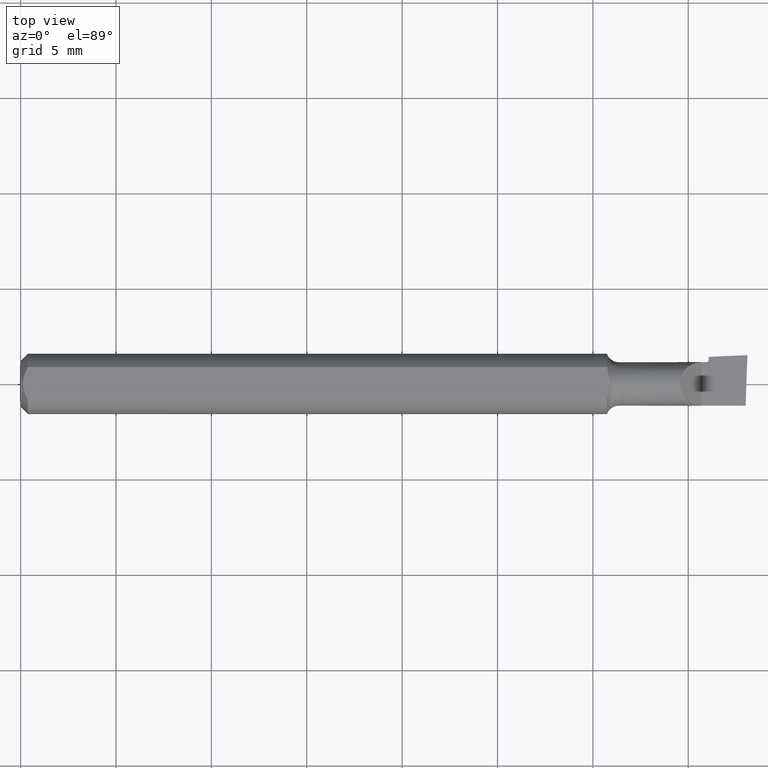
[diagram: clean part render]
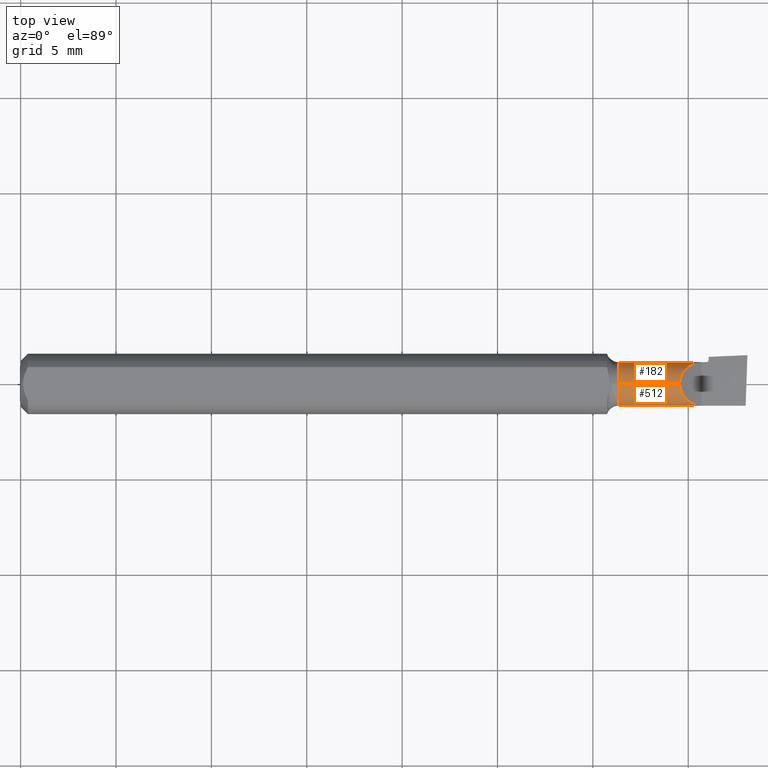
[diagram: same view with one multi-face feature highlighted, each face labeled with its STEP entity id]
A machine part, top view. The highlighted faces form ONE feature: a constant-radius fillet chain: 2 tangent blend faces with common blend radius 1.143 mm. The faces share edges in the B-rep.
Their STEP definitions:
[1] entity #182 (Cylinder):
#10 = EDGE_CURVE ( 'NONE', #230, #332, #533, .T. ) ;
#11 = CARTESIAN_POINT ( 'NONE',  ( 0.000000000000000000, 0.000000000000000000, 0.04499999999999999833 ) ) ;
#12 = LINE ( 'NONE', #582, #58 ) ;
#26 = VERTEX_POINT ( 'NONE', #201 ) ;
#31 = DIRECTION ( 'NONE',  ( -1.000000000000000000, -0.000000000000000000, -0.000000000000000000 ) ) ;
#35 = DIRECTION ( 'NONE',  ( 1.000000000000000000, 0.000000000000000000, 0.000000000000000000 ) ) ;
#42 = EDGE_CURVE ( 'NONE', #26, #192, #12, .T. ) ;
#47 = CARTESIAN_POINT ( 'NONE',  ( 1.378802680697162275, 0.04479487577709501817, 0.02654731930283728628 ) ) ;
#58 = VECTOR ( 'NONE', #115, 39.37007874015748143 ) ;
#67 = CARTESIAN_POINT ( 'NONE',  ( 1.405000000000000249, 0.000000000000000000, 0.000000000000000000 ) ) ;
#81 = CARTESIAN_POINT ( 'NONE',  ( 1.405000000000000249, 0.04499999999999999833, -1.868634782302818344E-17 ) ) ;
#115 = DIRECTION ( 'NONE',  ( -1.000000000000000000, -0.000000000000000000, -0.000000000000000000 ) ) ;
#129 = EDGE_CURVE ( 'NONE', #230, #168, #238, .T. ) ;
#133 = AXIS2_PLACEMENT_3D ( 'NONE', #199, #392, #581 ) ;
#143 = AXIS2_PLACEMENT_3D ( 'NONE', #304, #552, #409 ) ;
#159 = DIRECTION ( 'NONE',  ( 0.000000000000000000, 0.000000000000000000, 1.000000000000000000 ) ) ;
#168 = VERTEX_POINT ( 'NONE', #81 ) ;
#170 = ORIENTED_EDGE ( 'NONE', *, *, #224, .T. ) ;
#182 = ADVANCED_FACE ( 'NONE', ( #222 ), #557, .T. ) ;
#189 = ORIENTED_EDGE ( 'NONE', *, *, #42, .T. ) ;
#192 = VERTEX_POINT ( 'NONE', #600 ) ;
#195 = CARTESIAN_POINT ( 'NONE',  ( 0.000000000000000000, 0.04499999999999999833, -1.868634782302818344E-17 ) ) ;
#199 = CARTESIAN_POINT ( 'NONE',  ( 1.233999999999999986, 0.000000000000000000, 0.000000000000000000 ) ) ;
#201 = CARTESIAN_POINT ( 'NONE',  ( 1.415000000000000036, 1.824590875493064959E-16, -0.04499999999999993588 ) ) ;
#207 = ORIENTED_EDGE ( 'NONE', *, *, #129, .T. ) ;
#209 = AXIS2_PLACEMENT_3D ( 'NONE', #360, #31, #366 ) ;
#222 = FACE_OUTER_BOUND ( 'NONE', #321, .T. ) ;
#224 = EDGE_CURVE ( 'NONE', #556, #26, #328, .T. ) ;
#230 = VERTEX_POINT ( 'NONE', #451 ) ;
#238 = CIRCLE ( 'NONE', #361, 0.04499999999999999833 ) ;
#244 = DIRECTION ( 'NONE',  ( -1.000000000000000000, -0.000000000000000000, -0.000000000000000000 ) ) ;
#274 = VERTEX_POINT ( 'NONE', #353 ) ;
#297 = CARTESIAN_POINT ( 'NONE',  ( 1.415000000000000036, 0.04499999999999999833, -1.868634782302818344E-17 ) ) ;
#304 = CARTESIAN_POINT ( 'NONE',  ( 1.415000000000000036, 0.000000000000000000, 0.000000000000000000 ) ) ;
#318 = VECTOR ( 'NONE', #35, 39.37007874015748143 ) ;
#319 = VECTOR ( 'NONE', #244, 39.37007874015748143 ) ;
#321 = EDGE_LOOP ( 'NONE', ( #170, #189, #385, #473, #354, #207, #511 ) ) ;
#327 = CARTESIAN_POINT ( 'NONE',  ( 1.405000000000000249, 0.04499863886830356152, 0.0003499999999995775913 ) ) ;
#328 = CIRCLE ( 'NONE', #143, 0.04499999999999999833 ) ;
#332 = VERTEX_POINT ( 'NONE', #381 ) ;
#353 = CARTESIAN_POINT ( 'NONE',  ( 1.233999999999999986, 0.000000000000000000, 0.04499999999999999140 ) ) ;
#354 = ORIENTED_EDGE ( 'NONE', *, *, #10, .F. ) ;
#360 = CARTESIAN_POINT ( 'NONE',  ( 0.000000000000000000, 0.000000000000000000, 0.000000000000000000 ) ) ;
#361 = AXIS2_PLACEMENT_3D ( 'NONE', #67, #485, #159 ) ;
#365 = EDGE_CURVE ( 'NONE', #168, #556, #610, .T. ) ;
#366 = DIRECTION ( 'NONE',  ( 0.000000000000000000, 0.000000000000000000, 1.000000000000000000 ) ) ;
#381 = CARTESIAN_POINT ( 'NONE',  ( 1.360350000000000170, 0.000000000000000000, 0.04499999999999999833 ) ) ;
#385 = ORIENTED_EDGE ( 'NONE', *, *, #612, .F. ) ;
#390 = CARTESIAN_POINT ( 'NONE',  ( 1.360350000000000170, 0.000000000000000000, 0.04499999999999999833 ) ) ;
#392 = DIRECTION ( 'NONE',  ( -1.000000000000000000, -0.000000000000000000, -0.000000000000000000 ) ) ;
#409 = DIRECTION ( 'NONE',  ( 0.000000000000000000, 0.000000000000000000, 1.000000000000000000 ) ) ;
#451 = CARTESIAN_POINT ( 'NONE',  ( 1.405000000000000249, 0.04499863886830356152, 0.0003499999999995775913 ) ) ;
#473 = ORIENTED_EDGE ( 'NONE', *, *, #584, .F. ) ;
#485 = DIRECTION ( 'NONE',  ( -1.000000000000000000, -0.000000000000000000, -0.000000000000000000 ) ) ;
#511 = ORIENTED_EDGE ( 'NONE', *, *, #365, .T. ) ;
#533 =( BOUNDED_CURVE ( )  B_SPLINE_CURVE ( 3, ( #327, #47, #542, #390 ),
 .UNSPECIFIED., .F., .T. ) 
 B_SPLINE_CURVE_WITH_KNOTS ( ( 4, 4 ),
 ( 4.720166836582517789, 6.283185307179586232 ),
 .UNSPECIFIED. ) 
 CURVE ( )  GEOMETRIC_REPRESENTATION_ITEM ( )  RATIONAL_B_SPLINE_CURVE ( ( 1.000000000000000000, 0.8065675430899280629, 0.8065675430899280629, 1.000000000000000000 ) ) 
 REPRESENTATION_ITEM ( '' )  );
#542 = CARTESIAN_POINT ( 'NONE',  ( 1.360350000000000170, 0.02619811172684342881, 0.04499999999999999833 ) ) ;
#552 = DIRECTION ( 'NONE',  ( -1.000000000000000000, -0.000000000000000000, -0.000000000000000000 ) ) ;
#556 = VERTEX_POINT ( 'NONE', #297 ) ;
#557 = CYLINDRICAL_SURFACE ( 'NONE', #209, 0.04499999999999999833 ) ;
#578 = LINE ( 'NONE', #11, #319 ) ;
#581 = DIRECTION ( 'NONE',  ( 0.000000000000000000, 0.000000000000000000, 1.000000000000000000 ) ) ;
#582 = CARTESIAN_POINT ( 'NONE',  ( 0.000000000000000000, 5.510910596163089556E-18, -0.04499999999999999833 ) ) ;
#584 = EDGE_CURVE ( 'NONE', #332, #274, #578, .T. ) ;
#600 = CARTESIAN_POINT ( 'NONE',  ( 1.233999999999999986, 6.573291694434120121E-18, -0.04499999999999999140 ) ) ;
#610 = LINE ( 'NONE', #195, #318 ) ;
#612 = EDGE_CURVE ( 'NONE', #274, #192, #618, .T. ) ;
#618 = CIRCLE ( 'NONE', #133, 0.04499999999999999140 ) ;
[2] entity #512 (Cylinder):
#5 = CARTESIAN_POINT ( 'NONE',  ( 1.405000000000000249, -0.04499999999999999833, -1.868634782302818344E-17 ) ) ;
#11 = CARTESIAN_POINT ( 'NONE',  ( 0.000000000000000000, 0.000000000000000000, 0.04499999999999999833 ) ) ;
#12 = LINE ( 'NONE', #582, #58 ) ;
#26 = VERTEX_POINT ( 'NONE', #201 ) ;
#32 = ORIENTED_EDGE ( 'NONE', *, *, #161, .T. ) ;
#42 = EDGE_CURVE ( 'NONE', #26, #192, #12, .T. ) ;
#44 = ORIENTED_EDGE ( 'NONE', *, *, #300, .T. ) ;
#57 = CARTESIAN_POINT ( 'NONE',  ( 1.360350000000000170, -0.02619811172684342881, 0.04499999999999999833 ) ) ;
#58 = VECTOR ( 'NONE', #115, 39.37007874015748143 ) ;
#59 = VERTEX_POINT ( 'NONE', #576 ) ;
#77 = CARTESIAN_POINT ( 'NONE',  ( 1.435446859173552969, -0.04340526729089896202, -0.4961638572300726135 ) ) ;
#78 = ORIENTED_EDGE ( 'NONE', *, *, #619, .T. ) ;
#96 = ORIENTED_EDGE ( 'NONE', *, *, #459, .F. ) ;
#98 = CARTESIAN_POINT ( 'NONE',  ( 1.491469573703458229, -0.02629326065177165980, -0.04500000000000010936 ) ) ;
#100 = CYLINDRICAL_SURFACE ( 'NONE', #580, 0.04499999999999999833 ) ;
#115 = DIRECTION ( 'NONE',  ( -1.000000000000000000, -0.000000000000000000, -0.000000000000000000 ) ) ;
#130 = DIRECTION ( 'NONE',  ( 1.000000000000000000, 1.790984261580614452E-17, -6.284155303791548068E-17 ) ) ;
#134 = DIRECTION ( 'NONE',  ( 0.000000000000000000, 0.000000000000000000, 1.000000000000000000 ) ) ;
#136 = EDGE_CURVE ( 'NONE', #332, #240, #359, .T. ) ;
#137 = DIRECTION ( 'NONE',  ( 0.000000000000000000, 0.000000000000000000, 1.000000000000000000 ) ) ;
#140 = ORIENTED_EDGE ( 'NONE', *, *, #584, .T. ) ;
#147 = ORIENTED_EDGE ( 'NONE', *, *, #346, .F. ) ;
#150 = CARTESIAN_POINT ( 'NONE',  ( 1.493102199893894255, -0.04491525817069149523, -0.02643775972283102238 ) ) ;
#155 = LINE ( 'NONE', #398, #287 ) ;
#161 = EDGE_CURVE ( 'NONE', #59, #315, #203, .T. ) ;
#163 = VECTOR ( 'NONE', #547, 39.37007874015748854 ) ;
#167 = LINE ( 'NONE', #357, #383 ) ;
#192 = VERTEX_POINT ( 'NONE', #600 ) ;
#196 = CARTESIAN_POINT ( 'NONE',  ( 1.496329483393618709, -0.04499976756329679417, -0.0001446348825885092598 ) ) ;
#201 = CARTESIAN_POINT ( 'NONE',  ( 1.415000000000000036, 1.824590875493064959E-16, -0.04499999999999993588 ) ) ;
#203 = LINE ( 'NONE', #77, #163 ) ;
#240 = VERTEX_POINT ( 'NONE', #455 ) ;
#244 = DIRECTION ( 'NONE',  ( -1.000000000000000000, -0.000000000000000000, -0.000000000000000000 ) ) ;
#247 = DIRECTION ( 'NONE',  ( -1.000000000000000000, -0.000000000000000000, -0.000000000000000000 ) ) ;
#253 = ORIENTED_EDGE ( 'NONE', *, *, #136, .F. ) ;
#272 = VERTEX_POINT ( 'NONE', #591 ) ;
#274 = VERTEX_POINT ( 'NONE', #353 ) ;
#284 = EDGE_CURVE ( 'NONE', #26, #272, #167, .T. ) ;
#286 = DIRECTION ( 'NONE',  ( 0.000000000000000000, 0.000000000000000000, 1.000000000000000000 ) ) ;
#287 = VECTOR ( 'NONE', #586, 39.37007874015748143 ) ;
#291 = CARTESIAN_POINT ( 'NONE',  ( 1.360350000000000170, 0.000000000000000000, 0.04499999999999999833 ) ) ;
#300 = EDGE_CURVE ( 'NONE', #609, #240, #549, .T. ) ;
#315 = VERTEX_POINT ( 'NONE', #567 ) ;
#319 = VECTOR ( 'NONE', #244, 39.37007874015748143 ) ;
#320 = DIRECTION ( 'NONE',  ( -1.000000000000000000, -0.000000000000000000, -0.000000000000000000 ) ) ;
#332 = VERTEX_POINT ( 'NONE', #381 ) ;
#344 = CARTESIAN_POINT ( 'NONE',  ( 1.378802680697162275, -0.04479487577709500429, 0.02654731930283730015 ) ) ;
#346 = EDGE_CURVE ( 'NONE', #192, #274, #488, .T. ) ;
#347 = EDGE_LOOP ( 'NONE', ( #607, #614, #96, #32, #78, #44, #253, #140, #147 ) ) ;
#353 = CARTESIAN_POINT ( 'NONE',  ( 1.233999999999999986, 0.000000000000000000, 0.04499999999999999140 ) ) ;
#357 = CARTESIAN_POINT ( 'NONE',  ( 1.420000000000000151, 1.825486367623855226E-16, -0.04499999999999993588 ) ) ;
#359 =( BOUNDED_CURVE ( )  B_SPLINE_CURVE ( 3, ( #291, #57, #344, #443 ),
 .UNSPECIFIED., .F., .T. ) 
 B_SPLINE_CURVE_WITH_KNOTS ( ( 4, 4 ),
 ( 0.000000000000000000, 1.563018470597068443 ),
 .UNSPECIFIED. ) 
 CURVE ( )  GEOMETRIC_REPRESENTATION_ITEM ( )  RATIONAL_B_SPLINE_CURVE ( ( 1.000000000000000000, 0.8065675430899280629, 0.8065675430899280629, 1.000000000000000000 ) ) 
 REPRESENTATION_ITEM ( '' )  );
#381 = CARTESIAN_POINT ( 'NONE',  ( 1.360350000000000170, 0.000000000000000000, 0.04499999999999999833 ) ) ;
#383 = VECTOR ( 'NONE', #130, 39.37007874015748143 ) ;
#389 = CARTESIAN_POINT ( 'NONE',  ( 0.000000000000000000, 0.000000000000000000, 0.000000000000000000 ) ) ;
#396 = FACE_OUTER_BOUND ( 'NONE', #347, .T. ) ;
#398 = CARTESIAN_POINT ( 'NONE',  ( 0.000000000000000000, -0.04499999999999999833, -1.868634782302818344E-17 ) ) ;
#443 = CARTESIAN_POINT ( 'NONE',  ( 1.405000000000000249, -0.04499863886830356152, 0.0003499999999995775913 ) ) ;
#449 = AXIS2_PLACEMENT_3D ( 'NONE', #464, #563, #134 ) ;
#455 = CARTESIAN_POINT ( 'NONE',  ( 1.405000000000000249, -0.04499863886830356152, 0.0003499999999995775913 ) ) ;
#459 = EDGE_CURVE ( 'NONE', #59, #272, #467, .T. ) ;
#464 = CARTESIAN_POINT ( 'NONE',  ( 1.233999999999999986, 0.000000000000000000, 0.000000000000000000 ) ) ;
#467 =( BOUNDED_CURVE ( )  B_SPLINE_CURVE ( 3, ( #196, #150, #98, #484 ),
 .UNSPECIFIED., .F., .T. ) 
 B_SPLINE_CURVE_WITH_KNOTS ( ( 4, 4 ),
 ( 4.991545124274592737, 6.559127337033612726 ),
 .UNSPECIFIED. ) 
 CURVE ( )  GEOMETRIC_REPRESENTATION_ITEM ( )  RATIONAL_B_SPLINE_CURVE ( ( 1.000000000000000000, 0.8054948190095707616, 0.8054948190095707616, 1.000000000000000000 ) ) 
 REPRESENTATION_ITEM ( '' )  );
#484 = CARTESIAN_POINT ( 'NONE',  ( 1.492384267580293189, 1.823616221853069646E-16, -0.04499999999999994976 ) ) ;
#488 = CIRCLE ( 'NONE', #449, 0.04499999999999999140 ) ;
#512 = ADVANCED_FACE ( 'NONE', ( #396 ), #100, .T. ) ;
#529 = AXIS2_PLACEMENT_3D ( 'NONE', #608, #320, #137 ) ;
#547 = DIRECTION ( 'NONE',  ( 0.1218275818249038717, -0.003190167502629706348, 0.9925461516413236485 ) ) ;
#549 = CIRCLE ( 'NONE', #529, 0.04499999999999999833 ) ;
#563 = DIRECTION ( 'NONE',  ( -1.000000000000000000, -0.000000000000000000, -0.000000000000000000 ) ) ;
#567 = CARTESIAN_POINT ( 'NONE',  ( 1.496347244324711223, -0.04500000000000000527, -6.829619984160658046E-17 ) ) ;
#576 = CARTESIAN_POINT ( 'NONE',  ( 1.496329483393618709, -0.04499976756329679417, -0.0001446348825885092598 ) ) ;
#578 = LINE ( 'NONE', #11, #319 ) ;
#580 = AXIS2_PLACEMENT_3D ( 'NONE', #389, #247, #286 ) ;
#582 = CARTESIAN_POINT ( 'NONE',  ( 0.000000000000000000, 5.510910596163089556E-18, -0.04499999999999999833 ) ) ;
#584 = EDGE_CURVE ( 'NONE', #332, #274, #578, .T. ) ;
#586 = DIRECTION ( 'NONE',  ( -1.000000000000000000, -0.000000000000000000, -0.000000000000000000 ) ) ;
#591 = CARTESIAN_POINT ( 'NONE',  ( 1.492384267580293189, 1.823616221853069646E-16, -0.04499999999999994976 ) ) ;
#600 = CARTESIAN_POINT ( 'NONE',  ( 1.233999999999999986, 6.573291694434120121E-18, -0.04499999999999999140 ) ) ;
#607 = ORIENTED_EDGE ( 'NONE', *, *, #42, .F. ) ;
#608 = CARTESIAN_POINT ( 'NONE',  ( 1.405000000000000249, 0.000000000000000000, 0.000000000000000000 ) ) ;
#609 = VERTEX_POINT ( 'NONE', #5 ) ;
#614 = ORIENTED_EDGE ( 'NONE', *, *, #284, .T. ) ;
#619 = EDGE_CURVE ( 'NONE', #315, #609, #155, .T. ) ;